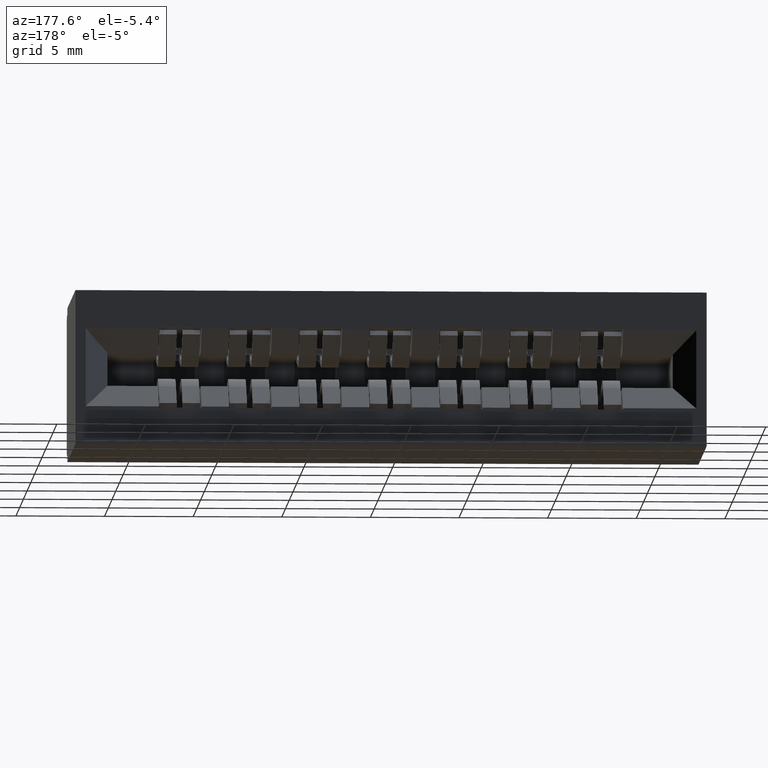
[diagram: clean part render]
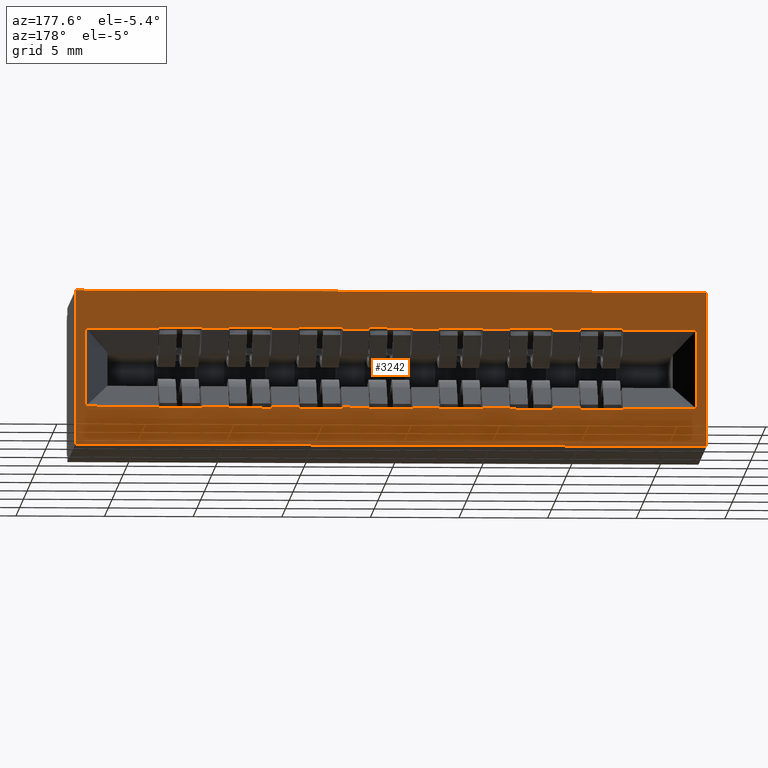
[diagram: same view with one face highlighted and labeled with its STEP entity id]
A machine part, auxiliary view. The second image highlights one B-rep face of the part: STEP entity #3242.
In plain terms, the highlighted planar face has unit normal (0, -1, 0).
Its self-contained STEP definition (entity closure, byte-faithful):
#112 = VECTOR ( 'NONE', #2332, 39.37007874015748100 ) ;
#121 = LINE ( 'NONE', #10687, #7498 ) ;
#176 = CARTESIAN_POINT ( 'NONE',  ( 0.7345000000000017100, 0.4600000000000000200, -0.2615000000000003400 ) ) ;
#287 = VECTOR ( 'NONE', #2499, 39.37007874015748100 ) ;
#301 = VECTOR ( 'NONE', #1614, 39.37007874015748100 ) ;
#325 = CARTESIAN_POINT ( 'NONE',  ( 1.046500000000001500, 0.4600000000000000200, -0.2585000000000003400 ) ) ;
#341 = DIRECTION ( 'NONE',  ( 1.000000000000000000, 0.0000000000000000000, 0.0000000000000000000 ) ) ;
#470 = LINE ( 'NONE', #9791, #10733 ) ;
#486 = LINE ( 'NONE', #2380, #3136 ) ;
#547 = VERTEX_POINT ( 'NONE', #4975 ) ;
#564 = ORIENTED_EDGE ( 'NONE', *, *, #1298, .F. ) ;
#617 = DIRECTION ( 'NONE',  ( -0.0000000000000000000, -0.0000000000000000000, 1.000000000000000000 ) ) ;
#638 = VECTOR ( 'NONE', #10931, 39.37007874015748100 ) ;
#661 = VECTOR ( 'NONE', #7992, 39.37007874015748100 ) ;
#690 = CARTESIAN_POINT ( 'NONE',  ( 0.8905000000000016200, 0.4600000000000000200, -0.2585000000000003400 ) ) ;
#746 = VERTEX_POINT ( 'NONE', #1322 ) ;
#790 = ORIENTED_EDGE ( 'NONE', *, *, #951, .F. ) ;
#795 = CARTESIAN_POINT ( 'NONE',  ( 1.677000000000002000, 0.4600000000000000200, -0.08449999999999977000 ) ) ;
#810 = ORIENTED_EDGE ( 'NONE', *, *, #1232, .F. ) ;
#816 = CARTESIAN_POINT ( 'NONE',  ( 0.2979999999999998200, 0.4600000000000000200, -0.3430000000000000300 ) ) ;
#834 = VERTEX_POINT ( 'NONE', #5303 ) ;
#835 = VERTEX_POINT ( 'NONE', #7284 ) ;
#841 = VECTOR ( 'NONE', #9328, 39.37007874015748100 ) ;
#845 = ORIENTED_EDGE ( 'NONE', *, *, #1249, .F. ) ;
#852 = VECTOR ( 'NONE', #10088, 39.37007874015748100 ) ;
#875 = VERTEX_POINT ( 'NONE', #9833 ) ;
#891 = VERTEX_POINT ( 'NONE', #8621 ) ;
#908 = ORIENTED_EDGE ( 'NONE', *, *, #1213, .T. ) ;
#924 = EDGE_CURVE ( 'NONE', #6366, #834, #10303, .T. ) ;
#925 = EDGE_CURVE ( 'NONE', #6366, #5962, #8436, .T. ) ;
#951 = EDGE_CURVE ( 'NONE', #3061, #5962, #5894, .T. ) ;
#955 = EDGE_CURVE ( 'NONE', #1526, #7915, #7978, .T. ) ;
#956 = EDGE_CURVE ( 'NONE', #1526, #6477, #4109, .T. ) ;
#957 = EDGE_CURVE ( 'NONE', #6477, #3947, #486, .T. ) ;
#970 = EDGE_CURVE ( 'NONE', #3947, #8855, #121, .T. ) ;
#973 = EDGE_CURVE ( 'NONE', #8855, #8261, #9474, .T. ) ;
#989 = EDGE_CURVE ( 'NONE', #8261, #8390, #9243, .T. ) ;
#991 = EDGE_CURVE ( 'NONE', #8390, #835, #10894, .T. ) ;
#998 = ORIENTED_EDGE ( 'NONE', *, *, #1231, .T. ) ;
#1003 = CARTESIAN_POINT ( 'NONE',  ( 1.107500000000001700, 0.4600000000000000200, -0.2585000000000003400 ) ) ;
#1005 = LINE ( 'NONE', #9510, #6007 ) ;
#1007 = EDGE_CURVE ( 'NONE', #7230, #835, #5113, .T. ) ;
#1010 = EDGE_CURVE ( 'NONE', #5276, #7230, #2431, .T. ) ;
#1011 = EDGE_CURVE ( 'NONE', #5276, #3922, #9028, .T. ) ;
#1021 = LINE ( 'NONE', #5063, #5239 ) ;
#1036 = EDGE_CURVE ( 'NONE', #3922, #7619, #4834, .T. ) ;
#1051 = EDGE_CURVE ( 'NONE', #4259, #7619, #6515, .T. ) ;
#1055 = EDGE_CURVE ( 'NONE', #7572, #4259, #10591, .T. ) ;
#1081 = EDGE_CURVE ( 'NONE', #7572, #4462, #4264, .T. ) ;
#1084 = EDGE_CURVE ( 'NONE', #4462, #9295, #10189, .T. ) ;
#1102 = EDGE_CURVE ( 'NONE', #7794, #9295, #6261, .T. ) ;
#1104 = EDGE_CURVE ( 'NONE', #7889, #7794, #8079, .T. ) ;
#1131 = EDGE_CURVE ( 'NONE', #7889, #7829, #5780, .T. ) ;
#1133 = EDGE_CURVE ( 'NONE', #7829, #4171, #2953, .T. ) ;
#1158 = EDGE_CURVE ( 'NONE', #4017, #4171, #10952, .T. ) ;
#1165 = EDGE_CURVE ( 'NONE', #2243, #4017, #1021, .T. ) ;
#1167 = EDGE_CURVE ( 'NONE', #2243, #7188, #9364, .T. ) ;
#1173 = DIRECTION ( 'NONE',  ( 1.000000000000000000, -0.0000000000000000000, -0.0000000000000000000 ) ) ;
#1188 = EDGE_CURVE ( 'NONE', #7188, #9388, #7112, .T. ) ;
#1208 = EDGE_CURVE ( 'NONE', #3482, #9388, #10656, .T. ) ;
#1210 = EDGE_CURVE ( 'NONE', #746, #3482, #6867, .T. ) ;
#1213 = EDGE_CURVE ( 'NONE', #746, #8335, #4978, .T. ) ;
#1218 = VECTOR ( 'NONE', #5389, 39.37007874015748100 ) ;
#1231 = EDGE_CURVE ( 'NONE', #8335, #3527, #10298, .T. ) ;
#1232 = EDGE_CURVE ( 'NONE', #6980, #3527, #1596, .T. ) ;
#1233 = VECTOR ( 'NONE', #10866, 39.37007874015748100 ) ;
#1249 = EDGE_CURVE ( 'NONE', #547, #6980, #8193, .T. ) ;
#1253 = EDGE_CURVE ( 'NONE', #547, #8121, #6136, .T. ) ;
#1270 = EDGE_CURVE ( 'NONE', #8121, #9114, #5880, .T. ) ;
#1272 = EDGE_CURVE ( 'NONE', #6930, #9114, #9875, .T. ) ;
#1298 = EDGE_CURVE ( 'NONE', #6655, #6930, #3123, .T. ) ;
#1300 = EDGE_CURVE ( 'NONE', #6655, #6961, #9467, .T. ) ;
#1301 = EDGE_CURVE ( 'NONE', #6961, #4390, #7486, .T. ) ;
#1318 = EDGE_CURVE ( 'NONE', #4390, #9406, #9236, .T. ) ;
#1319 = EDGE_CURVE ( 'NONE', #1554, #9406, #470, .T. ) ;
#1320 = EDGE_CURVE ( 'NONE', #1554, #3863, #9016, .T. ) ;
#1322 = CARTESIAN_POINT ( 'NONE',  ( 0.7955000000000016500, 0.4600000000000000200, -0.08450000000000035300 ) ) ;
#1346 = EDGE_CURVE ( 'NONE', #3863, #5107, #6988, .T. ) ;
#1349 = EDGE_CURVE ( 'NONE', #5107, #8437, #6739, .T. ) ;
#1370 = CARTESIAN_POINT ( 'NONE',  ( 0.0000000000000000000, 0.4600000000000000200, -0.3430000000000000300 ) ) ;
#1371 = EDGE_CURVE ( 'NONE', #4301, #8437, #8764, .T. ) ;
#1375 = EDGE_CURVE ( 'NONE', #4301, #9456, #10395, .T. ) ;
#1397 = EDGE_CURVE ( 'NONE', #9456, #10860, #1405, .T. ) ;
#1399 = EDGE_CURVE ( 'NONE', #10860, #2450, #8311, .T. ) ;
#1405 = LINE ( 'NONE', #6513, #6253 ) ;
#1413 = VECTOR ( 'NONE', #10924, 39.37007874015748100 ) ;
#1414 = EDGE_CURVE ( 'NONE', #6868, #2450, #1005, .T. ) ;
#1417 = EDGE_CURVE ( 'NONE', #6868, #891, #8072, .T. ) ;
#1419 = EDGE_CURVE ( 'NONE', #891, #2182, #3620, .T. ) ;
#1441 = EDGE_CURVE ( 'NONE', #2182, #3042, #3946, .T. ) ;
#1444 = EDGE_CURVE ( 'NONE', #10148, #3042, #5775, .T. ) ;
#1462 = EDGE_CURVE ( 'NONE', #10148, #5600, #10947, .T. ) ;
#1464 = EDGE_CURVE ( 'NONE', #5600, #9580, #5515, .T. ) ;
#1468 = EDGE_CURVE ( 'NONE', #9580, #9213, #7349, .T. ) ;
#1481 = DIRECTION ( 'NONE',  ( 1.000000000000000000, -0.0000000000000000000, -0.0000000000000000000 ) ) ;
#1482 = EDGE_CURVE ( 'NONE', #875, #9213, #7101, .T. ) ;
#1484 = EDGE_CURVE ( 'NONE', #875, #10681, #5228, .T. ) ;
#1488 = CARTESIAN_POINT ( 'NONE',  ( 0.0000000000000000000, 0.4600000000000000200, 0.0000000000000000000 ) ) ;
#1501 = EDGE_CURVE ( 'NONE', #10681, #6098, #2581, .T. ) ;
#1503 = EDGE_CURVE ( 'NONE', #6098, #3143, #2935, .T. ) ;
#1509 = EDGE_CURVE ( 'NONE', #5664, #3143, #10654, .T. ) ;
#1514 = CARTESIAN_POINT ( 'NONE',  ( 0.9515000000000015700, 0.4600000000000000200, -0.2615000000000003400 ) ) ;
#1526 = VERTEX_POINT ( 'NONE', #2312 ) ;
#1527 = EDGE_CURVE ( 'NONE', #5664, #4007, #6614, .T. ) ;
#1530 = EDGE_CURVE ( 'NONE', #4007, #6364, #1919, .T. ) ;
#1553 = EDGE_CURVE ( 'NONE', #6364, #7915, #6389, .T. ) ;
#1554 = VERTEX_POINT ( 'NONE', #9548 ) ;
#1564 = CARTESIAN_POINT ( 'NONE',  ( 1.046500000000001500, 0.4600000000000000200, -0.08450000000000035300 ) ) ;
#1569 = CARTESIAN_POINT ( 'NONE',  ( 1.514500000000001500, 0.4600000000000000200, -0.08450000000000035300 ) ) ;
#1586 = DIRECTION ( 'NONE',  ( -1.000000000000000000, 0.0000000000000000000, -1.359398882197583300E-017 ) ) ;
#1596 = LINE ( 'NONE', #9414, #4098 ) ;
#1614 = DIRECTION ( 'NONE',  ( 1.000000000000000000, -0.0000000000000000000, -0.0000000000000000000 ) ) ;
#1668 = CARTESIAN_POINT ( 'NONE',  ( 0.7955000000000016500, 0.4600000000000000200, -0.2615000000000003400 ) ) ;
#1919 = LINE ( 'NONE', #9584, #6856 ) ;
#1959 = CARTESIAN_POINT ( 'NONE',  ( 1.107500000000001700, 0.4600000000000000200, -0.2585000000000003400 ) ) ;
#2000 = DIRECTION ( 'NONE',  ( -1.000000000000000000, 0.0000000000000000000, -1.359398882197583300E-017 ) ) ;
#2028 = CARTESIAN_POINT ( 'NONE',  ( 0.0000000000000000000, 0.4600000000000000200, -0.2585000000000009000 ) ) ;
#2102 = DIRECTION ( 'NONE',  ( -0.0000000000000000000, -0.0000000000000000000, 1.000000000000000000 ) ) ;
#2105 = VECTOR ( 'NONE', #8249, 39.37007874015748100 ) ;
#2111 = CARTESIAN_POINT ( 'NONE',  ( 1.263500000000001400, 0.4600000000000000200, -0.2615000000000003400 ) ) ;
#2119 = DIRECTION ( 'NONE',  ( 0.0000000000000000000, 0.0000000000000000000, 1.000000000000000000 ) ) ;
#2182 = VERTEX_POINT ( 'NONE', #7276 ) ;
#2243 = VERTEX_POINT ( 'NONE', #4133 ) ;
#2257 = CARTESIAN_POINT ( 'NONE',  ( 0.5785000000000016800, 0.4600000000000000200, -0.08150000000000035000 ) ) ;
#2273 = CARTESIAN_POINT ( 'NONE',  ( 1.107500000000001700, 0.4600000000000000200, -0.2615000000000003400 ) ) ;
#2281 = DIRECTION ( 'NONE',  ( -4.977857131312432700E-016, 0.0000000000000000000, -1.000000000000000000 ) ) ;
#2312 = CARTESIAN_POINT ( 'NONE',  ( 1.419500000000001500, 0.4600000000000000200, -0.2615000000000003400 ) ) ;
#2327 = DIRECTION ( 'NONE',  ( 1.000000000000000000, -0.0000000000000000000, -0.0000000000000000000 ) ) ;
#2332 = DIRECTION ( 'NONE',  ( 0.0000000000000000000, 0.0000000000000000000, 1.000000000000000000 ) ) ;
#2380 = CARTESIAN_POINT ( 'NONE',  ( 1.514500000000001500, 0.4600000000000000200, -0.2585000000000003400 ) ) ;
#2395 = CARTESIAN_POINT ( 'NONE',  ( 0.4835000000000016000, 0.4600000000000000200, -0.08450000000000035300 ) ) ;
#2410 = CARTESIAN_POINT ( 'NONE',  ( 1.202500000000001700, 0.4600000000000000200, -0.2615000000000003400 ) ) ;
#2423 = CARTESIAN_POINT ( 'NONE',  ( 0.2979999999999999900, 0.4600000000000000200, 0.0000000000000000000 ) ) ;
#2431 = LINE ( 'NONE', #7115, #6993 ) ;
#2445 = DIRECTION ( 'NONE',  ( -1.000000000000000000, 0.0000000000000000000, -1.359398882197583300E-017 ) ) ;
#2450 = VERTEX_POINT ( 'NONE', #2589 ) ;
#2499 = DIRECTION ( 'NONE',  ( 1.000000000000000000, 0.0000000000000000000, 0.0000000000000000000 ) ) ;
#2568 = DIRECTION ( 'NONE',  ( -1.000000000000000000, -0.0000000000000000000, -0.0000000000000000000 ) ) ;
#2581 = LINE ( 'NONE', #3869, #8895 ) ;
#2589 = CARTESIAN_POINT ( 'NONE',  ( 0.7955000000000016500, 0.4600000000000000200, -0.2585000000000003400 ) ) ;
#2594 = VECTOR ( 'NONE', #3682, 39.37007874015748100 ) ;
#2618 = DIRECTION ( 'NONE',  ( 0.0000000000000000000, -0.0000000000000000000, -1.000000000000000000 ) ) ;
#2636 = CARTESIAN_POINT ( 'NONE',  ( 1.419500000000001500, 0.4600000000000000200, -0.2585000000000003400 ) ) ;
#2664 = DIRECTION ( 'NONE',  ( -0.0000000000000000000, -0.0000000000000000000, 1.000000000000000000 ) ) ;
#2780 = VECTOR ( 'NONE', #9299, 39.37007874015748100 ) ;
#2935 = LINE ( 'NONE', #7376, #4680 ) ;
#2953 = LINE ( 'NONE', #1564, #7607 ) ;
#2971 = CARTESIAN_POINT ( 'NONE',  ( 0.3210000000000011200, 0.4600000000000000200, -0.3430000000000000300 ) ) ;
#2981 = DIRECTION ( 'NONE',  ( 1.000000000000000000, 0.0000000000000000000, 0.0000000000000000000 ) ) ;
#3021 = DIRECTION ( 'NONE',  ( 0.0000000000000000000, 0.0000000000000000000, -1.000000000000000000 ) ) ;
#3042 = VERTEX_POINT ( 'NONE', #7825 ) ;
#3061 = VERTEX_POINT ( 'NONE', #10892 ) ;
#3070 = CARTESIAN_POINT ( 'NONE',  ( 1.263500000000001400, 0.4600000000000000200, -0.2585000000000003400 ) ) ;
#3123 = LINE ( 'NONE', #2395, #112 ) ;
#3136 = VECTOR ( 'NONE', #10097, 39.37007874015748100 ) ;
#3143 = VERTEX_POINT ( 'NONE', #3070 ) ;
#3220 = CARTESIAN_POINT ( 'NONE',  ( 0.0000000000000000000, 0.4600000000000000200, -0.3430000000000000300 ) ) ;
#3242 = ADVANCED_FACE ( 'NONE', ( #5044, #8960 ), #8640, .F. ) ;
#3293 = CARTESIAN_POINT ( 'NONE',  ( 1.700000000000000000, 0.4600000000000000200, 0.0000000000000000000 ) ) ;
#3294 = VECTOR ( 'NONE', #6146, 39.37007874015748100 ) ;
#3317 = CARTESIAN_POINT ( 'NONE',  ( 1.419500000000001500, 0.4600000000000000200, -0.08150000000000035000 ) ) ;
#3364 = CARTESIAN_POINT ( 'NONE',  ( 0.9515000000000015700, 0.4600000000000000200, -0.08150000000000035000 ) ) ;
#3373 = CARTESIAN_POINT ( 'NONE',  ( 0.6395000000000017300, 0.4600000000000000200, -0.08450000000000035300 ) ) ;
#3391 = ORIENTED_EDGE ( 'NONE', *, *, #1320, .T. ) ;
#3398 = CARTESIAN_POINT ( 'NONE',  ( 0.5785000000000016800, 0.4600000000000000200, -0.08450000000000035300 ) ) ;
#3472 = VECTOR ( 'NONE', #6348, 39.37007874015748100 ) ;
#3481 = VECTOR ( 'NONE', #2281, 39.37007874015748100 ) ;
#3482 = VERTEX_POINT ( 'NONE', #10029 ) ;
#3527 = VERTEX_POINT ( 'NONE', #10155 ) ;
#3542 = CARTESIAN_POINT ( 'NONE',  ( 1.419500000000001500, 0.4600000000000000200, -0.2585000000000003400 ) ) ;
#3547 = CARTESIAN_POINT ( 'NONE',  ( 0.4835000000000016000, 0.4600000000000000200, -0.08150000000000035000 ) ) ;
#3620 = LINE ( 'NONE', #690, #7838 ) ;
#3623 = DIRECTION ( 'NONE',  ( -1.000000000000000000, 0.0000000000000000000, -1.359398882197583300E-017 ) ) ;
#3682 = DIRECTION ( 'NONE',  ( 0.0000000000000000000, 0.0000000000000000000, 1.000000000000000000 ) ) ;
#3706 = ORIENTED_EDGE ( 'NONE', *, *, #1318, .T. ) ;
#3707 = CARTESIAN_POINT ( 'NONE',  ( 1.514500000000001500, 0.4600000000000000200, -0.2585000000000003400 ) ) ;
#3710 = CARTESIAN_POINT ( 'NONE',  ( -3.514046110480755400E-018, 0.4600000000000000200, -0.08449999999999981100 ) ) ;
#3754 = CARTESIAN_POINT ( 'NONE',  ( 1.046500000000001500, 0.4600000000000000200, -0.08150000000000035000 ) ) ;
#3852 = DIRECTION ( 'NONE',  ( 1.000000000000000000, -0.0000000000000000000, -0.0000000000000000000 ) ) ;
#3863 = VERTEX_POINT ( 'NONE', #10137 ) ;
#3869 = CARTESIAN_POINT ( 'NONE',  ( 1.202500000000001700, 0.4600000000000000200, -0.2585000000000003400 ) ) ;
#3894 = DIRECTION ( 'NONE',  ( -0.0000000000000000000, -0.0000000000000000000, 1.000000000000000000 ) ) ;
#3922 = VERTEX_POINT ( 'NONE', #9144 ) ;
#3929 = ORIENTED_EDGE ( 'NONE', *, *, #1300, .T. ) ;
#3940 = ORIENTED_EDGE ( 'NONE', *, *, #1270, .T. ) ;
#3946 = LINE ( 'NONE', #6684, #3294 ) ;
#3947 = VERTEX_POINT ( 'NONE', #3707 ) ;
#3956 = DIRECTION ( 'NONE',  ( -0.0000000000000000000, -0.0000000000000000000, 1.000000000000000000 ) ) ;
#4007 = VERTEX_POINT ( 'NONE', #4598 ) ;
#4017 = VERTEX_POINT ( 'NONE', #3364 ) ;
#4031 = CARTESIAN_POINT ( 'NONE',  ( 0.5785000000000016800, 0.4600000000000000200, -0.08450000000000035300 ) ) ;
#4035 = ORIENTED_EDGE ( 'NONE', *, *, #1501, .T. ) ;
#4040 = CARTESIAN_POINT ( 'NONE',  ( 0.6395000000000017300, 0.4600000000000000200, -0.2615000000000003400 ) ) ;
#4064 = CARTESIAN_POINT ( 'NONE',  ( 1.202500000000001700, 0.4600000000000000200, -0.2585000000000003400 ) ) ;
#4089 = VECTOR ( 'NONE', #8198, 39.37007874015748100 ) ;
#4098 = VECTOR ( 'NONE', #7758, 39.37007874015748100 ) ;
#4109 = LINE ( 'NONE', #6931, #852 ) ;
#4114 = ORIENTED_EDGE ( 'NONE', *, *, #957, .T. ) ;
#4133 = CARTESIAN_POINT ( 'NONE',  ( 0.9515000000000015700, 0.4600000000000000200, -0.08450000000000035300 ) ) ;
#4171 = VERTEX_POINT ( 'NONE', #3754 ) ;
#4199 = ORIENTED_EDGE ( 'NONE', *, *, #956, .T. ) ;
#4253 = VECTOR ( 'NONE', #6726, 39.37007874015748100 ) ;
#4259 = VERTEX_POINT ( 'NONE', #6896 ) ;
#4264 = LINE ( 'NONE', #10852, #8322 ) ;
#4266 = ORIENTED_EDGE ( 'NONE', *, *, #973, .T. ) ;
#4301 = VERTEX_POINT ( 'NONE', #4040 ) ;
#4348 = ORIENTED_EDGE ( 'NONE', *, *, #1208, .F. ) ;
#4388 = VECTOR ( 'NONE', #2327, 39.37007874015748100 ) ;
#4390 = VERTEX_POINT ( 'NONE', #9481 ) ;
#4400 = CARTESIAN_POINT ( 'NONE',  ( 0.6395000000000017300, 0.4600000000000000200, -0.2615000000000003400 ) ) ;
#4430 = CARTESIAN_POINT ( 'NONE',  ( 1.046500000000001500, 0.4600000000000000200, -0.08450000000000035300 ) ) ;
#4432 = CARTESIAN_POINT ( 'NONE',  ( 0.0000000000000000000, 0.4600000000000000200, -0.2585000000000009000 ) ) ;
#4435 = ORIENTED_EDGE ( 'NONE', *, *, #1210, .F. ) ;
#4444 = DIRECTION ( 'NONE',  ( -0.0000000000000000000, -0.0000000000000000000, 1.000000000000000000 ) ) ;
#4462 = VERTEX_POINT ( 'NONE', #9238 ) ;
#4465 = CARTESIAN_POINT ( 'NONE',  ( 0.4835000000000016000, 0.4600000000000000200, -0.2615000000000003400 ) ) ;
#4487 = ORIENTED_EDGE ( 'NONE', *, *, #1167, .T. ) ;
#4550 = CARTESIAN_POINT ( 'NONE',  ( 1.046500000000001500, 0.4600000000000000200, -0.2615000000000003400 ) ) ;
#4551 = VECTOR ( 'NONE', #341, 39.37007874015748100 ) ;
#4562 = VECTOR ( 'NONE', #9040, 39.37007874015748100 ) ;
#4566 = CARTESIAN_POINT ( 'NONE',  ( 1.358500000000001400, 0.4600000000000000200, -0.08150000000000035000 ) ) ;
#4573 = ORIENTED_EDGE ( 'NONE', *, *, #1188, .T. ) ;
#4598 = CARTESIAN_POINT ( 'NONE',  ( 1.358500000000001400, 0.4600000000000000200, -0.2615000000000003400 ) ) ;
#4632 = CARTESIAN_POINT ( 'NONE',  ( 1.263500000000001400, 0.4600000000000000200, -0.08450000000000035300 ) ) ;
#4680 = VECTOR ( 'NONE', #7939, 39.37007874015748100 ) ;
#4691 = VECTOR ( 'NONE', #6847, 39.37007874015748100 ) ;
#4822 = VECTOR ( 'NONE', #7691, 39.37007874015748100 ) ;
#4834 = LINE ( 'NONE', #10318, #4562 ) ;
#4943 = ORIENTED_EDGE ( 'NONE', *, *, #1419, .T. ) ;
#4954 = ORIENTED_EDGE ( 'NONE', *, *, #1414, .F. ) ;
#4963 = VECTOR ( 'NONE', #2102, 39.37007874015748100 ) ;
#4975 = CARTESIAN_POINT ( 'NONE',  ( 0.6395000000000017300, 0.4600000000000000200, -0.08450000000000035300 ) ) ;
#4978 = LINE ( 'NONE', #6968, #6621 ) ;
#5021 = CARTESIAN_POINT ( 'NONE',  ( -3.514046110480755400E-018, 0.4600000000000000200, -0.08449999999999981100 ) ) ;
#5031 = ORIENTED_EDGE ( 'NONE', *, *, #1397, .T. ) ;
#5043 = DIRECTION ( 'NONE',  ( 0.0000000000000000000, 0.0000000000000000000, 1.000000000000000000 ) ) ;
#5044 = FACE_OUTER_BOUND ( 'NONE', #8092, .T. ) ;
#5063 = CARTESIAN_POINT ( 'NONE',  ( 0.9515000000000015700, 0.4600000000000000200, -0.08450000000000035300 ) ) ;
#5098 = ORIENTED_EDGE ( 'NONE', *, *, #1349, .T. ) ;
#5103 = VECTOR ( 'NONE', #10009, 39.37007874015748100 ) ;
#5107 = VERTEX_POINT ( 'NONE', #9422 ) ;
#5113 = LINE ( 'NONE', #7322, #10735 ) ;
#5117 = ORIENTED_EDGE ( 'NONE', *, *, #1051, .F. ) ;
#5142 = ORIENTED_EDGE ( 'NONE', *, *, #1084, .T. ) ;
#5183 = CARTESIAN_POINT ( 'NONE',  ( 0.9515000000000015700, 0.4600000000000000200, -0.08150000000000035000 ) ) ;
#5213 = CARTESIAN_POINT ( 'NONE',  ( 0.9515000000000015700, 0.4600000000000000200, -0.2585000000000003400 ) ) ;
#5228 = LINE ( 'NONE', #2273, #9113 ) ;
#5233 = ORIENTED_EDGE ( 'NONE', *, *, #1081, .T. ) ;
#5235 = ORIENTED_EDGE ( 'NONE', *, *, #1104, .F. ) ;
#5239 = VECTOR ( 'NONE', #2119, 39.37007874015748100 ) ;
#5254 = ORIENTED_EDGE ( 'NONE', *, *, #1102, .F. ) ;
#5272 = CARTESIAN_POINT ( 'NONE',  ( 0.8905000000000016200, 0.4600000000000000200, -0.08450000000000035300 ) ) ;
#5276 = VERTEX_POINT ( 'NONE', #7666 ) ;
#5303 = CARTESIAN_POINT ( 'NONE',  ( 1.700000000000000000, 0.4600000000000000200, 0.0000000000000000000 ) ) ;
#5324 = CARTESIAN_POINT ( 'NONE',  ( 1.700000000000000200, 0.4600000000000000200, -0.3429999999999996400 ) ) ;
#5346 = CARTESIAN_POINT ( 'NONE',  ( 1.358500000000001400, 0.4600000000000000200, -0.2585000000000003400 ) ) ;
#5369 = VECTOR ( 'NONE', #2445, 39.37007874015748100 ) ;
#5389 = DIRECTION ( 'NONE',  ( 1.000000000000000000, -0.0000000000000000000, -0.0000000000000000000 ) ) ;
#5393 = CARTESIAN_POINT ( 'NONE',  ( 1.107500000000001700, 0.4600000000000000200, -0.08450000000000035300 ) ) ;
#5441 = CARTESIAN_POINT ( 'NONE',  ( 0.7345000000000017100, 0.4600000000000000200, -0.08450000000000035300 ) ) ;
#5515 = LINE ( 'NONE', #325, #7600 ) ;
#5521 = ORIENTED_EDGE ( 'NONE', *, *, #1133, .T. ) ;
#5530 = ORIENTED_EDGE ( 'NONE', *, *, #1131, .T. ) ;
#5539 = CARTESIAN_POINT ( 'NONE',  ( 0.6395000000000017300, 0.4600000000000000200, -0.2585000000000003400 ) ) ;
#5571 = CARTESIAN_POINT ( 'NONE',  ( 0.4835000000000016000, 0.4600000000000000200, -0.08450000000000035300 ) ) ;
#5594 = EDGE_CURVE ( 'NONE', #3061, #834, #9830, .T. ) ;
#5600 = VERTEX_POINT ( 'NONE', #4550 ) ;
#5605 = ORIENTED_EDGE ( 'NONE', *, *, #1165, .F. ) ;
#5629 = ORIENTED_EDGE ( 'NONE', *, *, #970, .T. ) ;
#5664 = VERTEX_POINT ( 'NONE', #2111 ) ;
#5752 = DIRECTION ( 'NONE',  ( 0.0000000000000000000, -1.000000000000000000, 0.0000000000000000000 ) ) ;
#5775 = LINE ( 'NONE', #5213, #9571 ) ;
#5780 = LINE ( 'NONE', #5911, #9579 ) ;
#5861 = CARTESIAN_POINT ( 'NONE',  ( 1.107500000000001700, 0.4600000000000000200, -0.08150000000000035000 ) ) ;
#5874 = ORIENTED_EDGE ( 'NONE', *, *, #991, .T. ) ;
#5880 = LINE ( 'NONE', #3398, #3472 ) ;
#5883 = EDGE_LOOP ( 'NONE', ( #6898, #4199, #4114, #5629, #4266, #5964, #5874, #6002, #5972, #6296, #6011, #5117, #6510, #5233, #5142, #5254, #5235, #5530, #5521, #7212, #5605, #4487, #4573, #4348, #4435, #908, #998, #810, #845, #9187, #3940, #7737, #564, #3929, #7205, #3706, #7193, #3391, #7184, #5098, #7114, #7096, #5031, #6978, #4954, #6911, #4943, #7595, #7218, #7307, #7452, #7340, #7579, #7523, #4035, #8139, #8070, #8064, #7946, #7842 ) ) ;
#5894 = LINE ( 'NONE', #2423, #3481 ) ;
#5911 = CARTESIAN_POINT ( 'NONE',  ( -3.514046110480755400E-018, 0.4600000000000000200, -0.08449999999999981100 ) ) ;
#5962 = VERTEX_POINT ( 'NONE', #816 ) ;
#5964 = ORIENTED_EDGE ( 'NONE', *, *, #989, .T. ) ;
#5972 = ORIENTED_EDGE ( 'NONE', *, *, #1010, .F. ) ;
#6000 = DIRECTION ( 'NONE',  ( -0.0000000000000000000, -0.0000000000000000000, 1.000000000000000000 ) ) ;
#6002 = ORIENTED_EDGE ( 'NONE', *, *, #1007, .F. ) ;
#6007 = VECTOR ( 'NONE', #6925, 39.37007874015748100 ) ;
#6011 = ORIENTED_EDGE ( 'NONE', *, *, #1036, .T. ) ;
#6017 = VECTOR ( 'NONE', #8520, 39.37007874015748100 ) ;
#6065 = CARTESIAN_POINT ( 'NONE',  ( 0.3210000000000011200, 0.4600000000000000200, -0.08449999999999979700 ) ) ;
#6098 = VERTEX_POINT ( 'NONE', #4064 ) ;
#6136 = LINE ( 'NONE', #7778, #6399 ) ;
#6146 = DIRECTION ( 'NONE',  ( 1.000000000000000000, 0.0000000000000000000, 0.0000000000000000000 ) ) ;
#6167 = CARTESIAN_POINT ( 'NONE',  ( 0.4835000000000016000, 0.4600000000000000200, -0.08150000000000035000 ) ) ;
#6206 = CARTESIAN_POINT ( 'NONE',  ( 0.8905000000000016200, 0.4600000000000000200, -0.08450000000000035300 ) ) ;
#6253 = VECTOR ( 'NONE', #6000, 39.37007874015748100 ) ;
#6261 = LINE ( 'NONE', #9319, #6017 ) ;
#6271 = CARTESIAN_POINT ( 'NONE',  ( 0.6395000000000017300, 0.4600000000000000200, -0.08150000000000035000 ) ) ;
#6296 = ORIENTED_EDGE ( 'NONE', *, *, #1011, .T. ) ;
#6348 = DIRECTION ( 'NONE',  ( 0.0000000000000000000, 0.0000000000000000000, 1.000000000000000000 ) ) ;
#6364 = VERTEX_POINT ( 'NONE', #5346 ) ;
#6366 = VERTEX_POINT ( 'NONE', #5324 ) ;
#6385 = CARTESIAN_POINT ( 'NONE',  ( 0.7345000000000017100, 0.4600000000000000200, -0.08450000000000035300 ) ) ;
#6389 = LINE ( 'NONE', #2028, #4089 ) ;
#6399 = VECTOR ( 'NONE', #3623, 39.37007874015748100 ) ;
#6477 = VERTEX_POINT ( 'NONE', #7310 ) ;
#6506 = VECTOR ( 'NONE', #8562, 39.37007874015748100 ) ;
#6510 = ORIENTED_EDGE ( 'NONE', *, *, #1055, .F. ) ;
#6513 = CARTESIAN_POINT ( 'NONE',  ( 0.7345000000000017100, 0.4600000000000000200, -0.2585000000000003400 ) ) ;
#6515 = LINE ( 'NONE', #8553, #10402 ) ;
#6558 = CARTESIAN_POINT ( 'NONE',  ( 0.0000000000000000000, 0.4600000000000000200, -0.2585000000000009000 ) ) ;
#6614 = LINE ( 'NONE', #10334, #4388 ) ;
#6621 = VECTOR ( 'NONE', #8756, 39.37007874015748100 ) ;
#6655 = VERTEX_POINT ( 'NONE', #5571 ) ;
#6680 = DIRECTION ( 'NONE',  ( 0.0000000000000000000, 0.0000000000000000000, 1.000000000000000000 ) ) ;
#6684 = CARTESIAN_POINT ( 'NONE',  ( 0.0000000000000000000, 0.4600000000000000200, -0.2585000000000009000 ) ) ;
#6726 = DIRECTION ( 'NONE',  ( 1.000000000000000000, -0.0000000000000000000, -0.0000000000000000000 ) ) ;
#6739 = LINE ( 'NONE', #7467, #4551 ) ;
#6847 = DIRECTION ( 'NONE',  ( 1.000000000000000000, -0.0000000000000000000, -0.0000000000000000000 ) ) ;
#6856 = VECTOR ( 'NONE', #2664, 39.37007874015748100 ) ;
#6867 = LINE ( 'NONE', #7006, #9126 ) ;
#6868 = VERTEX_POINT ( 'NONE', #8540 ) ;
#6896 = CARTESIAN_POINT ( 'NONE',  ( 1.263500000000001400, 0.4600000000000000200, -0.08150000000000035000 ) ) ;
#6898 = ORIENTED_EDGE ( 'NONE', *, *, #955, .F. ) ;
#6905 = DIRECTION ( 'NONE',  ( -0.0000000000000000000, -0.0000000000000000000, 1.000000000000000000 ) ) ;
#6911 = ORIENTED_EDGE ( 'NONE', *, *, #1417, .T. ) ;
#6925 = DIRECTION ( 'NONE',  ( -0.0000000000000000000, -0.0000000000000000000, 1.000000000000000000 ) ) ;
#6930 = VERTEX_POINT ( 'NONE', #6167 ) ;
#6931 = CARTESIAN_POINT ( 'NONE',  ( 1.419500000000001500, 0.4600000000000000200, -0.2615000000000003400 ) ) ;
#6945 = CARTESIAN_POINT ( 'NONE',  ( 1.677000000000002000, 0.4600000000000000200, -0.2585000000000009000 ) ) ;
#6961 = VERTEX_POINT ( 'NONE', #6065 ) ;
#6968 = CARTESIAN_POINT ( 'NONE',  ( -3.514046110480755400E-018, 0.4600000000000000200, -0.08449999999999981100 ) ) ;
#6978 = ORIENTED_EDGE ( 'NONE', *, *, #1399, .T. ) ;
#6980 = VERTEX_POINT ( 'NONE', #6271 ) ;
#6988 = LINE ( 'NONE', #7465, #10587 ) ;
#6993 = VECTOR ( 'NONE', #7167, 39.37007874015748100 ) ;
#7006 = CARTESIAN_POINT ( 'NONE',  ( 0.7955000000000016500, 0.4600000000000000200, -0.08450000000000035300 ) ) ;
#7018 = DIRECTION ( 'NONE',  ( 0.0000000000000000000, 0.0000000000000000000, 1.000000000000000000 ) ) ;
#7081 = ORIENTED_EDGE ( 'NONE', *, *, #925, .T. ) ;
#7096 = ORIENTED_EDGE ( 'NONE', *, *, #1375, .T. ) ;
#7101 = LINE ( 'NONE', #1959, #4963 ) ;
#7104 = DIRECTION ( 'NONE',  ( 1.000000000000000000, -0.0000000000000000000, -0.0000000000000000000 ) ) ;
#7109 = CARTESIAN_POINT ( 'NONE',  ( 1.202500000000001700, 0.4600000000000000200, -0.08150000000000035000 ) ) ;
#7112 = LINE ( 'NONE', #6206, #2594 ) ;
#7114 = ORIENTED_EDGE ( 'NONE', *, *, #1371, .F. ) ;
#7115 = CARTESIAN_POINT ( 'NONE',  ( 1.419500000000001500, 0.4600000000000000200, -0.08450000000000035300 ) ) ;
#7167 = DIRECTION ( 'NONE',  ( 0.0000000000000000000, 0.0000000000000000000, 1.000000000000000000 ) ) ;
#7184 = ORIENTED_EDGE ( 'NONE', *, *, #1346, .T. ) ;
#7188 = VERTEX_POINT ( 'NONE', #5272 ) ;
#7193 = ORIENTED_EDGE ( 'NONE', *, *, #1319, .F. ) ;
#7205 = ORIENTED_EDGE ( 'NONE', *, *, #1301, .T. ) ;
#7212 = ORIENTED_EDGE ( 'NONE', *, *, #1158, .F. ) ;
#7214 = VECTOR ( 'NONE', #7387, 39.37007874015748100 ) ;
#7218 = ORIENTED_EDGE ( 'NONE', *, *, #1444, .F. ) ;
#7230 = VERTEX_POINT ( 'NONE', #3317 ) ;
#7276 = CARTESIAN_POINT ( 'NONE',  ( 0.8905000000000016200, 0.4600000000000000200, -0.2585000000000003400 ) ) ;
#7284 = CARTESIAN_POINT ( 'NONE',  ( 1.514500000000001500, 0.4600000000000000200, -0.08150000000000035000 ) ) ;
#7307 = ORIENTED_EDGE ( 'NONE', *, *, #1462, .T. ) ;
#7310 = CARTESIAN_POINT ( 'NONE',  ( 1.514500000000001500, 0.4600000000000000200, -0.2615000000000003400 ) ) ;
#7322 = CARTESIAN_POINT ( 'NONE',  ( 1.419500000000001500, 0.4600000000000000200, -0.08150000000000035000 ) ) ;
#7340 = ORIENTED_EDGE ( 'NONE', *, *, #1468, .T. ) ;
#7349 = LINE ( 'NONE', #4432, #287 ) ;
#7376 = CARTESIAN_POINT ( 'NONE',  ( 0.0000000000000000000, 0.4600000000000000200, -0.2585000000000009000 ) ) ;
#7387 = DIRECTION ( 'NONE',  ( -1.000000000000000000, 0.0000000000000000000, -1.359398882197583300E-017 ) ) ;
#7420 = CARTESIAN_POINT ( 'NONE',  ( 1.263500000000001400, 0.4600000000000000200, -0.2585000000000003400 ) ) ;
#7452 = ORIENTED_EDGE ( 'NONE', *, *, #1464, .T. ) ;
#7453 = CARTESIAN_POINT ( 'NONE',  ( 1.514500000000001500, 0.4600000000000000200, -0.08450000000000035300 ) ) ;
#7465 = CARTESIAN_POINT ( 'NONE',  ( 0.5785000000000016800, 0.4600000000000000200, -0.2585000000000003400 ) ) ;
#7467 = CARTESIAN_POINT ( 'NONE',  ( 0.0000000000000000000, 0.4600000000000000200, -0.2585000000000009000 ) ) ;
#7486 = LINE ( 'NONE', #2971, #10888 ) ;
#7498 = VECTOR ( 'NONE', #10667, 39.37007874015748100 ) ;
#7523 = ORIENTED_EDGE ( 'NONE', *, *, #1484, .T. ) ;
#7572 = VERTEX_POINT ( 'NONE', #4632 ) ;
#7579 = ORIENTED_EDGE ( 'NONE', *, *, #1482, .F. ) ;
#7595 = ORIENTED_EDGE ( 'NONE', *, *, #1441, .T. ) ;
#7600 = VECTOR ( 'NONE', #10871, 39.37007874015748100 ) ;
#7607 = VECTOR ( 'NONE', #5043, 39.37007874015748100 ) ;
#7619 = VERTEX_POINT ( 'NONE', #4566 ) ;
#7632 = CARTESIAN_POINT ( 'NONE',  ( 0.6395000000000017300, 0.4600000000000000200, -0.2585000000000003400 ) ) ;
#7666 = CARTESIAN_POINT ( 'NONE',  ( 1.419500000000001500, 0.4600000000000000200, -0.08450000000000035300 ) ) ;
#7691 = DIRECTION ( 'NONE',  ( 1.000000000000000000, -0.0000000000000000000, -0.0000000000000000000 ) ) ;
#7730 = VECTOR ( 'NONE', #10310, 39.37007874015748100 ) ;
#7737 = ORIENTED_EDGE ( 'NONE', *, *, #1272, .F. ) ;
#7758 = DIRECTION ( 'NONE',  ( 1.000000000000000000, -0.0000000000000000000, -0.0000000000000000000 ) ) ;
#7778 = CARTESIAN_POINT ( 'NONE',  ( -3.514046110480755400E-018, 0.4600000000000000200, -0.08449999999999981100 ) ) ;
#7794 = VERTEX_POINT ( 'NONE', #5861 ) ;
#7801 = DIRECTION ( 'NONE',  ( -1.000000000000000000, 0.0000000000000000000, -1.359398882197583300E-017 ) ) ;
#7825 = CARTESIAN_POINT ( 'NONE',  ( 0.9515000000000015700, 0.4600000000000000200, -0.2585000000000003400 ) ) ;
#7829 = VERTEX_POINT ( 'NONE', #4430 ) ;
#7838 = VECTOR ( 'NONE', #7921, 39.37007874015748100 ) ;
#7842 = ORIENTED_EDGE ( 'NONE', *, *, #1553, .T. ) ;
#7889 = VERTEX_POINT ( 'NONE', #5393 ) ;
#7915 = VERTEX_POINT ( 'NONE', #3542 ) ;
#7921 = DIRECTION ( 'NONE',  ( -0.0000000000000000000, -0.0000000000000000000, 1.000000000000000000 ) ) ;
#7939 = DIRECTION ( 'NONE',  ( 1.000000000000000000, 0.0000000000000000000, 0.0000000000000000000 ) ) ;
#7946 = ORIENTED_EDGE ( 'NONE', *, *, #1530, .T. ) ;
#7972 = CARTESIAN_POINT ( 'NONE',  ( 1.107500000000001700, 0.4600000000000000200, -0.08450000000000035300 ) ) ;
#7978 = LINE ( 'NONE', #2636, #9675 ) ;
#7992 = DIRECTION ( 'NONE',  ( 0.0000000000000000000, 0.0000000000000000000, 1.000000000000000000 ) ) ;
#8024 = CARTESIAN_POINT ( 'NONE',  ( 1.046500000000001500, 0.4600000000000000200, -0.2585000000000003400 ) ) ;
#8064 = ORIENTED_EDGE ( 'NONE', *, *, #1527, .T. ) ;
#8070 = ORIENTED_EDGE ( 'NONE', *, *, #1509, .F. ) ;
#8072 = LINE ( 'NONE', #1668, #638 ) ;
#8079 = LINE ( 'NONE', #7972, #661 ) ;
#8092 = EDGE_LOOP ( 'NONE', ( #9850, #8850, #7081, #790 ) ) ;
#8121 = VERTEX_POINT ( 'NONE', #4031 ) ;
#8139 = ORIENTED_EDGE ( 'NONE', *, *, #1503, .T. ) ;
#8150 = CARTESIAN_POINT ( 'NONE',  ( 0.4835000000000016000, 0.4600000000000000200, -0.2585000000000003400 ) ) ;
#8193 = LINE ( 'NONE', #3373, #841 ) ;
#8198 = DIRECTION ( 'NONE',  ( 1.000000000000000000, 0.0000000000000000000, 0.0000000000000000000 ) ) ;
#8201 = VECTOR ( 'NONE', #2568, 39.37007874015748100 ) ;
#8244 = AXIS2_PLACEMENT_3D ( 'NONE', #1370, #5752, #2618 ) ;
#8249 = DIRECTION ( 'NONE',  ( -1.000000000000000000, 0.0000000000000000000, -1.359398882197583300E-017 ) ) ;
#8261 = VERTEX_POINT ( 'NONE', #795 ) ;
#8311 = LINE ( 'NONE', #6558, #6506 ) ;
#8322 = VECTOR ( 'NONE', #7801, 39.37007874015748100 ) ;
#8335 = VERTEX_POINT ( 'NONE', #5441 ) ;
#8385 = CARTESIAN_POINT ( 'NONE',  ( -3.514046110480755400E-018, 0.4600000000000000200, -0.08449999999999981100 ) ) ;
#8390 = VERTEX_POINT ( 'NONE', #1569 ) ;
#8436 = LINE ( 'NONE', #3220, #8201 ) ;
#8437 = VERTEX_POINT ( 'NONE', #5539 ) ;
#8520 = DIRECTION ( 'NONE',  ( 1.000000000000000000, -0.0000000000000000000, -0.0000000000000000000 ) ) ;
#8536 = VECTOR ( 'NONE', #3894, 39.37007874015748100 ) ;
#8540 = CARTESIAN_POINT ( 'NONE',  ( 0.7955000000000016500, 0.4600000000000000200, -0.2615000000000003400 ) ) ;
#8553 = CARTESIAN_POINT ( 'NONE',  ( 1.263500000000001400, 0.4600000000000000200, -0.08150000000000035000 ) ) ;
#8562 = DIRECTION ( 'NONE',  ( 1.000000000000000000, 0.0000000000000000000, 0.0000000000000000000 ) ) ;
#8579 = CARTESIAN_POINT ( 'NONE',  ( 1.202500000000001700, 0.4600000000000000200, -0.08450000000000035300 ) ) ;
#8621 = CARTESIAN_POINT ( 'NONE',  ( 0.8905000000000016200, 0.4600000000000000200, -0.2615000000000003400 ) ) ;
#8640 = PLANE ( 'NONE',  #8244 ) ;
#8655 = VECTOR ( 'NONE', #6680, 39.37007874015748100 ) ;
#8756 = DIRECTION ( 'NONE',  ( -1.000000000000000000, 0.0000000000000000000, -1.359398882197583300E-017 ) ) ;
#8764 = LINE ( 'NONE', #7632, #8536 ) ;
#8850 = ORIENTED_EDGE ( 'NONE', *, *, #924, .F. ) ;
#8855 = VERTEX_POINT ( 'NONE', #6945 ) ;
#8857 = CARTESIAN_POINT ( 'NONE',  ( 0.8905000000000016200, 0.4600000000000000200, -0.08150000000000035000 ) ) ;
#8895 = VECTOR ( 'NONE', #8907, 39.37007874015748100 ) ;
#8907 = DIRECTION ( 'NONE',  ( -0.0000000000000000000, -0.0000000000000000000, 1.000000000000000000 ) ) ;
#8936 = CARTESIAN_POINT ( 'NONE',  ( 0.7955000000000016500, 0.4600000000000000200, -0.08150000000000035000 ) ) ;
#8960 = FACE_BOUND ( 'NONE', #5883, .T. ) ;
#9016 = LINE ( 'NONE', #4465, #4822 ) ;
#9028 = LINE ( 'NONE', #8385, #2105 ) ;
#9040 = DIRECTION ( 'NONE',  ( 0.0000000000000000000, 0.0000000000000000000, 1.000000000000000000 ) ) ;
#9113 = VECTOR ( 'NONE', #1173, 39.37007874015748100 ) ;
#9114 = VERTEX_POINT ( 'NONE', #2257 ) ;
#9126 = VECTOR ( 'NONE', #7018, 39.37007874015748100 ) ;
#9144 = CARTESIAN_POINT ( 'NONE',  ( 1.358500000000001400, 0.4600000000000000200, -0.08450000000000035300 ) ) ;
#9187 = ORIENTED_EDGE ( 'NONE', *, *, #1253, .T. ) ;
#9213 = VERTEX_POINT ( 'NONE', #1003 ) ;
#9236 = LINE ( 'NONE', #10455, #5103 ) ;
#9238 = CARTESIAN_POINT ( 'NONE',  ( 1.202500000000001700, 0.4600000000000000200, -0.08450000000000035300 ) ) ;
#9243 = LINE ( 'NONE', #10669, #7214 ) ;
#9261 = DIRECTION ( 'NONE',  ( 0.0000000000000000000, 0.0000000000000000000, 1.000000000000000000 ) ) ;
#9295 = VERTEX_POINT ( 'NONE', #7109 ) ;
#9299 = DIRECTION ( 'NONE',  ( 0.0000000000000000000, 0.0000000000000000000, 1.000000000000000000 ) ) ;
#9319 = CARTESIAN_POINT ( 'NONE',  ( 1.107500000000001700, 0.4600000000000000200, -0.08150000000000035000 ) ) ;
#9328 = DIRECTION ( 'NONE',  ( 0.0000000000000000000, 0.0000000000000000000, 1.000000000000000000 ) ) ;
#9354 = VECTOR ( 'NONE', #3852, 39.37007874015748100 ) ;
#9360 = DIRECTION ( 'NONE',  ( -0.0000000000000000000, -0.0000000000000000000, 1.000000000000000000 ) ) ;
#9364 = LINE ( 'NONE', #3710, #10811 ) ;
#9388 = VERTEX_POINT ( 'NONE', #8857 ) ;
#9406 = VERTEX_POINT ( 'NONE', #8150 ) ;
#9414 = CARTESIAN_POINT ( 'NONE',  ( 0.6395000000000017300, 0.4600000000000000200, -0.08150000000000035000 ) ) ;
#9418 = VECTOR ( 'NONE', #2981, 39.37007874015748100 ) ;
#9422 = CARTESIAN_POINT ( 'NONE',  ( 0.5785000000000016800, 0.4600000000000000200, -0.2585000000000003400 ) ) ;
#9456 = VERTEX_POINT ( 'NONE', #176 ) ;
#9467 = LINE ( 'NONE', #5021, #5369 ) ;
#9474 = LINE ( 'NONE', #10076, #2780 ) ;
#9481 = CARTESIAN_POINT ( 'NONE',  ( 0.3210000000000011200, 0.4600000000000000200, -0.2585000000000009000 ) ) ;
#9510 = CARTESIAN_POINT ( 'NONE',  ( 0.7955000000000016500, 0.4600000000000000200, -0.2585000000000003400 ) ) ;
#9548 = CARTESIAN_POINT ( 'NONE',  ( 0.4835000000000016000, 0.4600000000000000200, -0.2615000000000003400 ) ) ;
#9571 = VECTOR ( 'NONE', #617, 39.37007874015748100 ) ;
#9579 = VECTOR ( 'NONE', #1586, 39.37007874015748100 ) ;
#9580 = VERTEX_POINT ( 'NONE', #8024 ) ;
#9584 = CARTESIAN_POINT ( 'NONE',  ( 1.358500000000001400, 0.4600000000000000200, -0.2585000000000003400 ) ) ;
#9675 = VECTOR ( 'NONE', #6905, 39.37007874015748100 ) ;
#9791 = CARTESIAN_POINT ( 'NONE',  ( 0.4835000000000016000, 0.4600000000000000200, -0.2585000000000003400 ) ) ;
#9808 = CARTESIAN_POINT ( 'NONE',  ( 0.7345000000000017100, 0.4600000000000000200, -0.2585000000000003400 ) ) ;
#9830 = LINE ( 'NONE', #1488, #9418 ) ;
#9833 = CARTESIAN_POINT ( 'NONE',  ( 1.107500000000001700, 0.4600000000000000200, -0.2615000000000003400 ) ) ;
#9850 = ORIENTED_EDGE ( 'NONE', *, *, #5594, .T. ) ;
#9875 = LINE ( 'NONE', #3547, #1218 ) ;
#9993 = VECTOR ( 'NONE', #9261, 39.37007874015748100 ) ;
#10009 = DIRECTION ( 'NONE',  ( 1.000000000000000000, 0.0000000000000000000, 0.0000000000000000000 ) ) ;
#10029 = CARTESIAN_POINT ( 'NONE',  ( 0.7955000000000016500, 0.4600000000000000200, -0.08150000000000035000 ) ) ;
#10076 = CARTESIAN_POINT ( 'NONE',  ( 1.677000000000002000, 0.4600000000000000200, -0.3430000000000000300 ) ) ;
#10088 = DIRECTION ( 'NONE',  ( 1.000000000000000000, -0.0000000000000000000, -0.0000000000000000000 ) ) ;
#10097 = DIRECTION ( 'NONE',  ( -0.0000000000000000000, -0.0000000000000000000, 1.000000000000000000 ) ) ;
#10137 = CARTESIAN_POINT ( 'NONE',  ( 0.5785000000000016800, 0.4600000000000000200, -0.2615000000000003400 ) ) ;
#10148 = VERTEX_POINT ( 'NONE', #1514 ) ;
#10155 = CARTESIAN_POINT ( 'NONE',  ( 0.7345000000000017100, 0.4600000000000000200, -0.08150000000000035000 ) ) ;
#10189 = LINE ( 'NONE', #8579, #9993 ) ;
#10298 = LINE ( 'NONE', #6385, #8655 ) ;
#10303 = LINE ( 'NONE', #3293, #1233 ) ;
#10310 = DIRECTION ( 'NONE',  ( 0.0000000000000000000, 0.0000000000000000000, 1.000000000000000000 ) ) ;
#10318 = CARTESIAN_POINT ( 'NONE',  ( 1.358500000000001400, 0.4600000000000000200, -0.08450000000000035300 ) ) ;
#10334 = CARTESIAN_POINT ( 'NONE',  ( 1.263500000000001400, 0.4600000000000000200, -0.2615000000000003400 ) ) ;
#10395 = LINE ( 'NONE', #4400, #4253 ) ;
#10402 = VECTOR ( 'NONE', #1481, 39.37007874015748100 ) ;
#10455 = CARTESIAN_POINT ( 'NONE',  ( 0.0000000000000000000, 0.4600000000000000200, -0.2585000000000009000 ) ) ;
#10488 = VECTOR ( 'NONE', #9360, 39.37007874015748100 ) ;
#10587 = VECTOR ( 'NONE', #3956, 39.37007874015748100 ) ;
#10591 = LINE ( 'NONE', #10847, #1413 ) ;
#10595 = CARTESIAN_POINT ( 'NONE',  ( 0.9515000000000015700, 0.4600000000000000200, -0.2615000000000003400 ) ) ;
#10654 = LINE ( 'NONE', #7420, #10488 ) ;
#10656 = LINE ( 'NONE', #8936, #4691 ) ;
#10667 = DIRECTION ( 'NONE',  ( 1.000000000000000000, 0.0000000000000000000, 0.0000000000000000000 ) ) ;
#10669 = CARTESIAN_POINT ( 'NONE',  ( -3.514046110480755400E-018, 0.4600000000000000200, -0.08449999999999981100 ) ) ;
#10681 = VERTEX_POINT ( 'NONE', #2410 ) ;
#10687 = CARTESIAN_POINT ( 'NONE',  ( 0.0000000000000000000, 0.4600000000000000200, -0.2585000000000009000 ) ) ;
#10733 = VECTOR ( 'NONE', #4444, 39.37007874015748100 ) ;
#10735 = VECTOR ( 'NONE', #7104, 39.37007874015748100 ) ;
#10811 = VECTOR ( 'NONE', #2000, 39.37007874015748100 ) ;
#10847 = CARTESIAN_POINT ( 'NONE',  ( 1.263500000000001400, 0.4600000000000000200, -0.08450000000000035300 ) ) ;
#10852 = CARTESIAN_POINT ( 'NONE',  ( -3.514046110480755400E-018, 0.4600000000000000200, -0.08449999999999981100 ) ) ;
#10860 = VERTEX_POINT ( 'NONE', #9808 ) ;
#10866 = DIRECTION ( 'NONE',  ( -7.964571410099900100E-016, -0.0000000000000000000, 1.000000000000000000 ) ) ;
#10871 = DIRECTION ( 'NONE',  ( -0.0000000000000000000, -0.0000000000000000000, 1.000000000000000000 ) ) ;
#10888 = VECTOR ( 'NONE', #3021, 39.37007874015748100 ) ;
#10892 = CARTESIAN_POINT ( 'NONE',  ( 0.2979999999999999900, 0.4600000000000000200, 0.0000000000000000000 ) ) ;
#10894 = LINE ( 'NONE', #7453, #7730 ) ;
#10924 = DIRECTION ( 'NONE',  ( 0.0000000000000000000, 0.0000000000000000000, 1.000000000000000000 ) ) ;
#10931 = DIRECTION ( 'NONE',  ( 1.000000000000000000, -0.0000000000000000000, -0.0000000000000000000 ) ) ;
#10947 = LINE ( 'NONE', #10595, #9354 ) ;
#10952 = LINE ( 'NONE', #5183, #301 ) ;